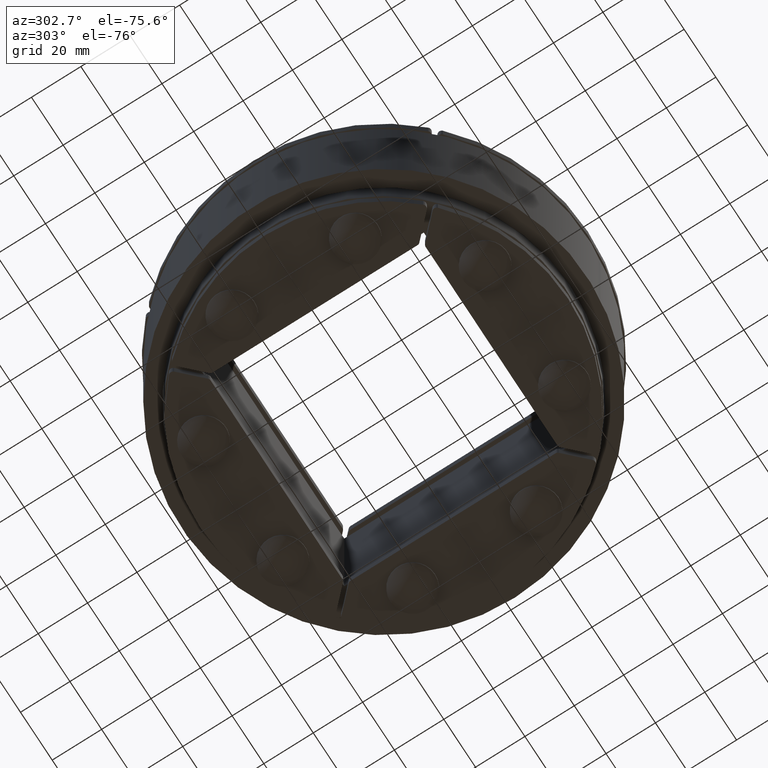
[diagram: clean part render]
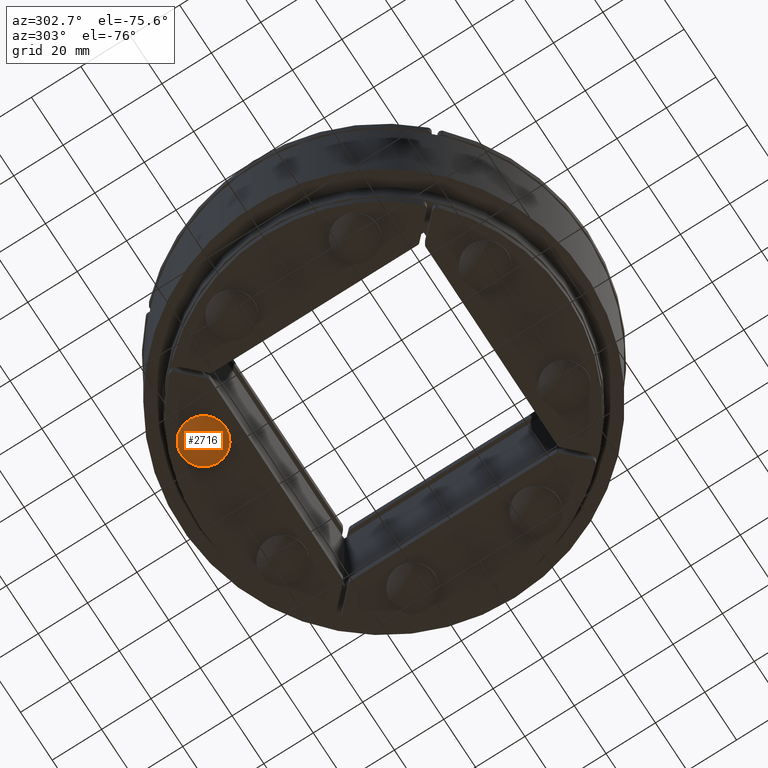
[diagram: same view with one face highlighted and labeled with its STEP entity id]
A machine part, auxiliary view. The second image highlights one B-rep face of the part: STEP entity #2716.
In plain terms, the highlighted spherical surface has radius 14 mm.
Its self-contained STEP definition (entity closure, byte-faithful):
#2693=CARTESIAN_POINT('',(-9.000000000000002,0.723805294763609,0.0));
#2694=VERTEX_POINT('',#2693);
#2695=CARTESIAN_POINT('',(0.0,0.723805294763604,0.0));
#2696=DIRECTION('',(0.0,1.0,0.0));
#2697=DIRECTION('',(-1.0,0.0,0.0));
#2698=AXIS2_PLACEMENT_3D('',#2695,#2696,#2697);
#2699=CIRCLE('',#2698,9.000000000000002);
#2700=EDGE_CURVE('',#2694,#2694,#2699,.T.);
#2708=CARTESIAN_POINT('',(1.224647E-015,-10.0,0.0));
#2709=DIRECTION('',(0.0,0.0,1.0));
#2710=DIRECTION('',(1.0,0.0,0.0));
#2711=AXIS2_PLACEMENT_3D('',#2708,#2709,#2710);
#2712=SPHERICAL_SURFACE('',#2711,14.000000000000004);
#2713=ORIENTED_EDGE('',*,*,#2700,.T.);
#2714=EDGE_LOOP('',(#2713));
#2715=FACE_OUTER_BOUND('',#2714,.T.);
#2716=ADVANCED_FACE('',(#2715),#2712,.T.);